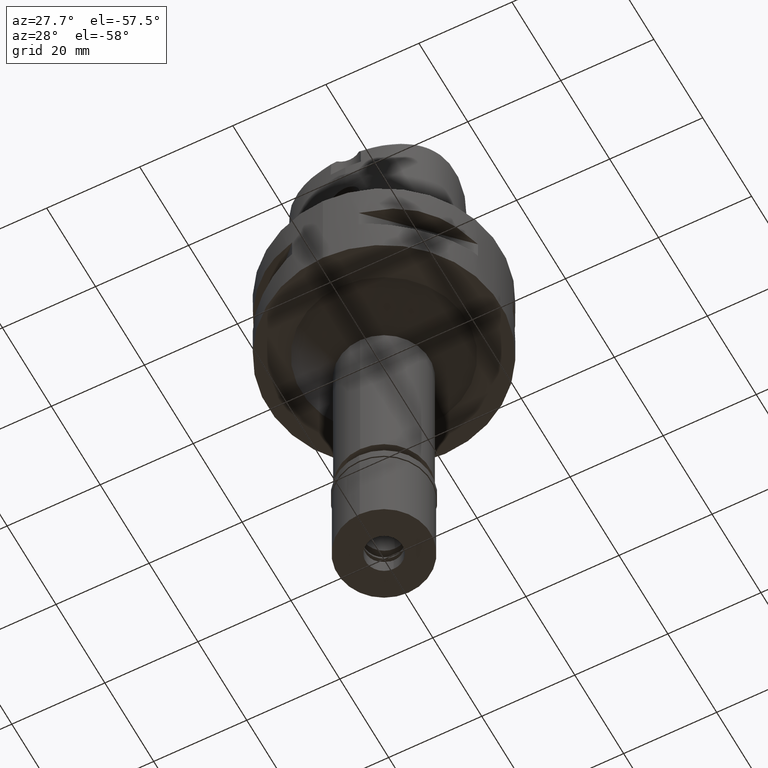
[diagram: clean part render]
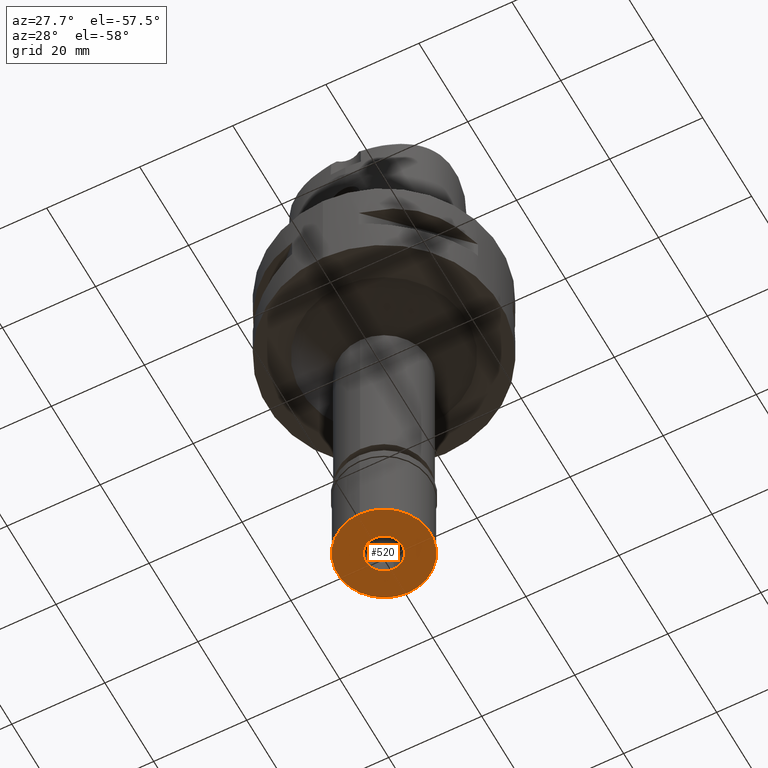
[diagram: same view with one face highlighted and labeled with its STEP entity id]
A machine part, auxiliary view. The second image highlights one B-rep face of the part: STEP entity #520.
In plain terms, the highlighted planar face has unit normal (0, 0, -1).
Its self-contained STEP definition (entity closure, byte-faithful):
#265 = ORIENTED_EDGE ( 'NONE', *, *, #3812, .F. ) ;
#318 = PLANE ( 'NONE',  #3859 ) ;
#430 = DIRECTION ( 'NONE',  ( 0.0000000000000000000, 0.0000000000000000000, 1.000000000000000000 ) ) ;
#520 = ADVANCED_FACE ( 'NONE', ( #1786, #2219 ), #318, .T. ) ;
#549 = VERTEX_POINT ( 'NONE', #1057 ) ;
#736 = DIRECTION ( 'NONE',  ( 0.0000000000000000000, 0.0000000000000000000, -1.000000000000000000 ) ) ;
#753 = AXIS2_PLACEMENT_3D ( 'NONE', #3337, #4783, #1446 ) ;
#873 = DIRECTION ( 'NONE',  ( 0.0000000000000000000, 0.0000000000000000000, 1.000000000000000000 ) ) ;
#1057 = CARTESIAN_POINT ( 'NONE',  ( 0.0000000000000000000, 10.00000000000000000, -20.60000000000000142 ) ) ;
#1108 = DIRECTION ( 'NONE',  ( 0.0000000000000000000, -1.000000000000000000, 0.0000000000000000000 ) ) ;
#1208 = ORIENTED_EDGE ( 'NONE', *, *, #4843, .F. ) ;
#1437 = CARTESIAN_POINT ( 'NONE',  ( 0.0000000000000000000, 0.0000000000000000000, -20.60000000000000142 ) ) ;
#1446 = DIRECTION ( 'NONE',  ( 0.0000000000000000000, -1.000000000000000000, 0.0000000000000000000 ) ) ;
#1517 = EDGE_CURVE ( 'NONE', #3524, #549, #3472, .T. ) ;
#1553 = CARTESIAN_POINT ( 'NONE',  ( 0.0000000000000000000, 0.0000000000000000000, -20.60000000000000142 ) ) ;
#1635 = AXIS2_PLACEMENT_3D ( 'NONE', #1553, #430, #4888 ) ;
#1657 = DIRECTION ( 'NONE',  ( 0.0000000000000000000, -1.000000000000000000, 0.0000000000000000000 ) ) ;
#1667 = VERTEX_POINT ( 'NONE', #2255 ) ;
#1786 = FACE_OUTER_BOUND ( 'NONE', #3750, .T. ) ;
#1839 = CARTESIAN_POINT ( 'NONE',  ( 0.0000000000000000000, 3.950000000000000178, -20.60000000000000142 ) ) ;
#1929 = ORIENTED_EDGE ( 'NONE', *, *, #4297, .F. ) ;
#1938 = ORIENTED_EDGE ( 'NONE', *, *, #1517, .F. ) ;
#2219 = FACE_BOUND ( 'NONE', #4030, .T. ) ;
#2255 = CARTESIAN_POINT ( 'NONE',  ( 0.0000000000000000000, -3.950000000000000178, -20.60000000000000142 ) ) ;
#2312 = DIRECTION ( 'NONE',  ( 0.0000000000000000000, 1.000000000000000000, 0.0000000000000000000 ) ) ;
#2845 = CARTESIAN_POINT ( 'NONE',  ( 0.0000000000000000000, 0.0000000000000000000, -20.60000000000000142 ) ) ;
#2977 = CIRCLE ( 'NONE', #753, 3.950000000000000178 ) ;
#3002 = CARTESIAN_POINT ( 'NONE',  ( 0.0000000000000000000, -10.00000000000000000, -20.60000000000000142 ) ) ;
#3216 = CIRCLE ( 'NONE', #1635, 10.00000000000000000 ) ;
#3217 = AXIS2_PLACEMENT_3D ( 'NONE', #2845, #873, #1657 ) ;
#3337 = CARTESIAN_POINT ( 'NONE',  ( 0.0000000000000000000, 0.0000000000000000000, -20.60000000000000142 ) ) ;
#3436 = VERTEX_POINT ( 'NONE', #1839 ) ;
#3472 = CIRCLE ( 'NONE', #3217, 10.00000000000000000 ) ;
#3524 = VERTEX_POINT ( 'NONE', #3002 ) ;
#3750 = EDGE_LOOP ( 'NONE', ( #1929, #1938 ) ) ;
#3812 = EDGE_CURVE ( 'NONE', #1667, #3436, #2977, .T. ) ;
#3859 = AXIS2_PLACEMENT_3D ( 'NONE', #4511, #736, #1108 ) ;
#4030 = EDGE_LOOP ( 'NONE', ( #1208, #265 ) ) ;
#4233 = DIRECTION ( 'NONE',  ( 0.0000000000000000000, 0.0000000000000000000, -1.000000000000000000 ) ) ;
#4297 = EDGE_CURVE ( 'NONE', #549, #3524, #3216, .T. ) ;
#4409 = CIRCLE ( 'NONE', #4900, 3.950000000000000178 ) ;
#4511 = CARTESIAN_POINT ( 'NONE',  ( 0.0000000000000000000, 0.0000000000000000000, -20.60000000000000142 ) ) ;
#4783 = DIRECTION ( 'NONE',  ( 0.0000000000000000000, 0.0000000000000000000, -1.000000000000000000 ) ) ;
#4843 = EDGE_CURVE ( 'NONE', #3436, #1667, #4409, .T. ) ;
#4888 = DIRECTION ( 'NONE',  ( 0.0000000000000000000, 1.000000000000000000, 0.0000000000000000000 ) ) ;
#4900 = AXIS2_PLACEMENT_3D ( 'NONE', #1437, #4233, #2312 ) ;